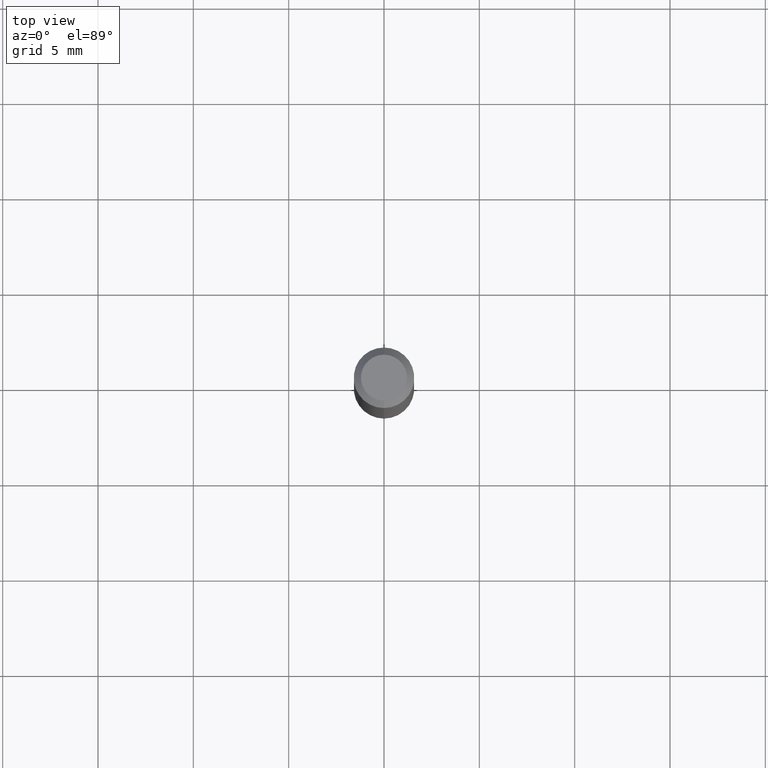
[diagram: clean part render]
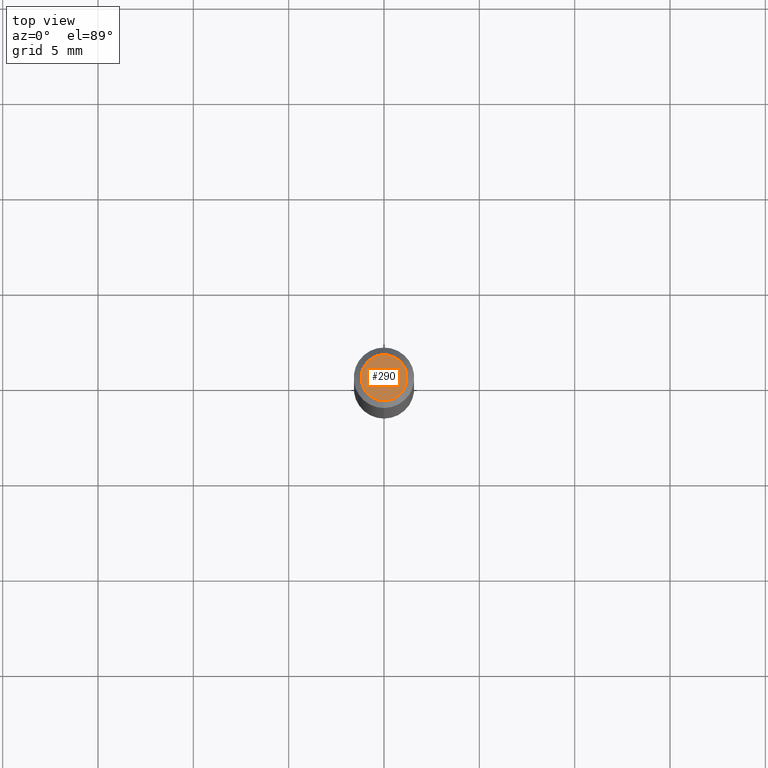
[diagram: same view with one face highlighted and labeled with its STEP entity id]
A machine part, top view. The second image highlights one B-rep face of the part: STEP entity #290.
In plain terms, the highlighted planar face has unit normal (0, -0, -1).
Its self-contained STEP definition (entity closure, byte-faithful):
#35 = CARTESIAN_POINT ( 'NONE',  ( -3.773273898774340269E-16, -0.04749999999999999362, 4.053359154515480659E-16 ) ) ;
#60 = EDGE_CURVE ( 'NONE', #183, #363, #366, .T. ) ;
#105 = CARTESIAN_POINT ( 'NONE',  ( -5.856609787010447440E-45, 8.361782726284154230E-31, 2.394895972721927438E-16 ) ) ;
#109 = CARTESIAN_POINT ( 'NONE',  ( 3.840629472727447874E-16, 0.04749999999999999362, 7.364327909283752044E-17 ) ) ;
#155 = DIRECTION ( 'NONE',  ( 6.982962677686265922E-15, 1.000000000000000000, -3.491501435354847556E-15 ) ) ;
#177 = EDGE_CURVE ( 'NONE', #363, #183, #223, .T. ) ;
#183 = VERTEX_POINT ( 'NONE', #35 ) ;
#193 = EDGE_LOOP ( 'NONE', ( #204, #313 ) ) ;
#203 = DIRECTION ( 'NONE',  ( -2.445454772866020119E-29, 3.491501435354847556E-15, 1.000000000000000000 ) ) ;
#204 = ORIENTED_EDGE ( 'NONE', *, *, #177, .T. ) ;
#223 = CIRCLE ( 'NONE', #505, 0.04749999999999999362 ) ;
#239 = DIRECTION ( 'NONE',  ( -6.982962677686266711E-15, -1.000000000000000000, 3.491501435354848345E-15 ) ) ;
#290 = ADVANCED_FACE ( 'NONE', ( #430 ), #397, .F. ) ;
#313 = ORIENTED_EDGE ( 'NONE', *, *, #60, .T. ) ;
#321 = CARTESIAN_POINT ( 'NONE',  ( 3.316907271900976096E-16, 0.04749999999999999362, -4.610151954325886381E-17 ) ) ;
#359 = DIRECTION ( 'NONE',  ( -6.982962677686266711E-15, -1.000000000000000000, 3.491501435354848345E-15 ) ) ;
#363 = VERTEX_POINT ( 'NONE', #109 ) ;
#366 = CIRCLE ( 'NONE', #428, 0.04749999999999999362 ) ;
#396 = AXIS2_PLACEMENT_3D ( 'NONE', #321, #483, #155 ) ;
#397 = PLANE ( 'NONE',  #396 ) ;
#428 = AXIS2_PLACEMENT_3D ( 'NONE', #509, #433, #359 ) ;
#430 = FACE_OUTER_BOUND ( 'NONE', #193, .T. ) ;
#433 = DIRECTION ( 'NONE',  ( -2.445454772866020119E-29, 3.491501435354847556E-15, 1.000000000000000000 ) ) ;
#483 = DIRECTION ( 'NONE',  ( 2.445454772866019558E-29, -3.491501435354847556E-15, -1.000000000000000000 ) ) ;
#505 = AXIS2_PLACEMENT_3D ( 'NONE', #105, #203, #239 ) ;
#509 = CARTESIAN_POINT ( 'NONE',  ( -5.856609787010447440E-45, 8.361782726284154230E-31, 2.394895972721927438E-16 ) ) ;